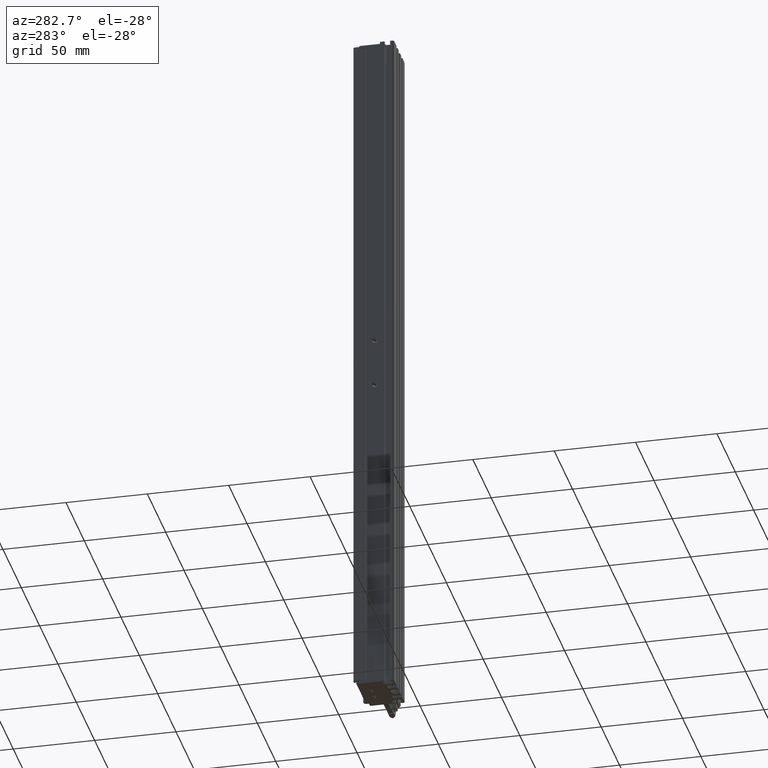
[diagram: clean part render]
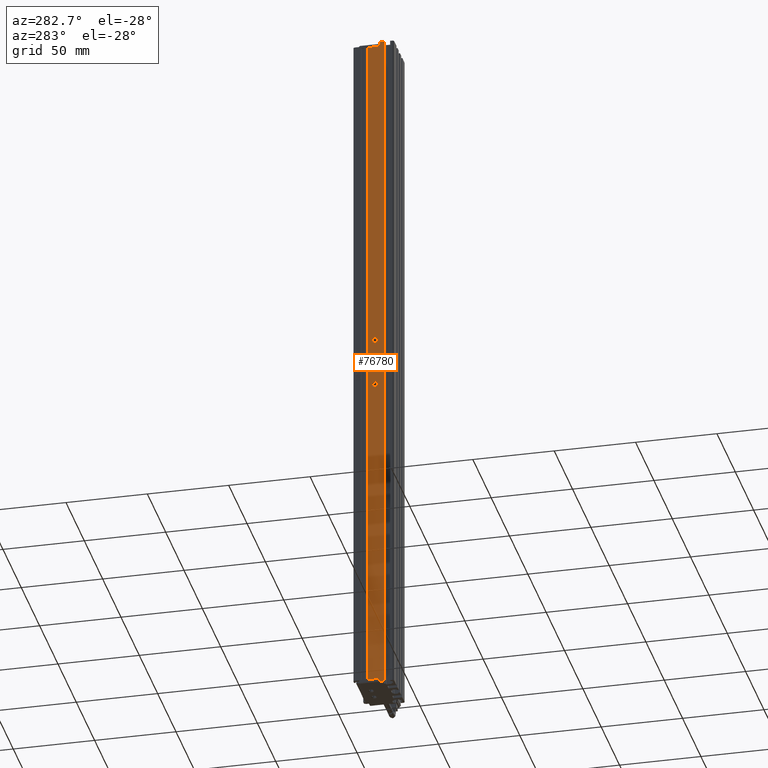
[diagram: same view with one face highlighted and labeled with its STEP entity id]
A machine part, auxiliary view. The second image highlights one B-rep face of the part: STEP entity #76780.
In plain terms, the highlighted planar face has unit normal (-1, 0, 0).
Its self-contained STEP definition (entity closure, byte-faithful):
#2262 = ORIENTED_EDGE ( 'NONE', *, *, #73562, .T. ) ;
#2331 = VERTEX_POINT ( 'NONE', #66686 ) ;
#3093 = FACE_BOUND ( 'NONE', #12512, .T. ) ;
#5262 = ORIENTED_EDGE ( 'NONE', *, *, #66899, .T. ) ;
#6059 = CIRCLE ( 'NONE', #45149, 1.800000000073409500 ) ;
#6368 = EDGE_CURVE ( 'NONE', #79115, #49622, #29121, .T. ) ;
#6447 = VERTEX_POINT ( 'NONE', #13531 ) ;
#6976 = EDGE_CURVE ( 'NONE', #6447, #34309, #69903, .T. ) ;
#7271 = CARTESIAN_POINT ( 'NONE',  ( 25.92537974683541800, 19.19594479660386500, 102.0000000000000000 ) ) ;
#7426 = LINE ( 'NONE', #7271, #40078 ) ;
#9789 = VERTEX_POINT ( 'NONE', #41407 ) ;
#10041 = CIRCLE ( 'NONE', #30339, 1.800000000073409500 ) ;
#10093 = AXIS2_PLACEMENT_3D ( 'NONE', #55164, #18333, #61311 ) ;
#11557 = ORIENTED_EDGE ( 'NONE', *, *, #45672, .T. ) ;
#12239 = CARTESIAN_POINT ( 'NONE',  ( 25.92537974684906700, 22.39594479660386700, -101.7999999999892700 ) ) ;
#12512 = EDGE_LOOP ( 'NONE', ( #39882, #60684 ) ) ;
#13531 = CARTESIAN_POINT ( 'NONE',  ( 25.92537974683541800, 19.19594479660386500, 99.99999999999998600 ) ) ;
#13819 = EDGE_CURVE ( 'NONE', #32011, #32689, #34585, .T. ) ;
#14059 = ORIENTED_EDGE ( 'NONE', *, *, #74944, .T. ) ;
#15916 = VERTEX_POINT ( 'NONE', #19707 ) ;
#17545 = CARTESIAN_POINT ( 'NONE',  ( 25.92537974683541800, 19.19594479660386500, -332.0000000000000000 ) ) ;
#18333 = DIRECTION ( 'NONE',  ( 1.000000000000000000, -0.0000000000000000000, -0.0000000000000000000 ) ) ;
#19707 = CARTESIAN_POINT ( 'NONE',  ( 25.92537974683541800, 19.19594479660386500, 102.0000000000000000 ) ) ;
#19772 = EDGE_CURVE ( 'NONE', #32689, #15916, #62241, .T. ) ;
#20091 = AXIS2_PLACEMENT_3D ( 'NONE', #68704, #31858, #74947 ) ;
#20851 = VECTOR ( 'NONE', #43501, 1000.000000000000000 ) ;
#21387 = LINE ( 'NONE', #32876, #52206 ) ;
#23832 = CARTESIAN_POINT ( 'NONE',  ( 25.92537974679222400, 22.39594479660386700, -130.0000000000000000 ) ) ;
#24799 = DIRECTION ( 'NONE',  ( 0.0000000000000000000, 0.0000000000000000000, 1.000000000000000000 ) ) ;
#24861 = CARTESIAN_POINT ( 'NONE',  ( 25.92537974683541800, 7.083797468354437600, -332.0000000000000000 ) ) ;
#25063 = DIRECTION ( 'NONE',  ( 1.000000000000000000, -0.0000000000000000000, -0.0000000000000000000 ) ) ;
#25315 = CARTESIAN_POINT ( 'NONE',  ( 25.92537974684906700, 22.39594479660386700, -100.0000000000000000 ) ) ;
#25769 = EDGE_CURVE ( 'NONE', #15916, #6447, #7426, .T. ) ;
#25890 = ORIENTED_EDGE ( 'NONE', *, *, #6976, .T. ) ;
#27441 = VERTEX_POINT ( 'NONE', #67426 ) ;
#27736 = CARTESIAN_POINT ( 'NONE',  ( 25.92537974683541800, 16.49594479660387200, 102.0000000000000000 ) ) ;
#28053 = LINE ( 'NONE', #41113, #58852 ) ;
#29121 = CIRCLE ( 'NONE', #46644, 1.799999999989268400 ) ;
#29495 = CARTESIAN_POINT ( 'NONE',  ( 25.92537974683541800, 7.083797468354437600, -330.0000000000000000 ) ) ;
#29603 = EDGE_CURVE ( 'NONE', #9789, #2331, #58062, .T. ) ;
#29984 = DIRECTION ( 'NONE',  ( 0.0000000000000000000, 0.0000000000000000000, 1.000000000000000000 ) ) ;
#30339 = AXIS2_PLACEMENT_3D ( 'NONE', #32488, #75591, #38685 ) ;
#30452 = ORIENTED_EDGE ( 'NONE', *, *, #13819, .T. ) ;
#31858 = DIRECTION ( 'NONE',  ( -1.000000000000000000, 0.0000000000000000000, 0.0000000000000000000 ) ) ;
#32011 = VERTEX_POINT ( 'NONE', #47969 ) ;
#32488 = CARTESIAN_POINT ( 'NONE',  ( 25.92537974679222400, 22.39594479660386700, -130.0000000000000000 ) ) ;
#32689 = VERTEX_POINT ( 'NONE', #27736 ) ;
#32716 = CARTESIAN_POINT ( 'NONE',  ( 25.92537974683541800, 16.49594479660387200, 102.0000000000000000 ) ) ;
#32876 = CARTESIAN_POINT ( 'NONE',  ( 25.92537974683542100, 19.19594479660386500, 102.0000000000000000 ) ) ;
#34309 = VERTEX_POINT ( 'NONE', #39862 ) ;
#34585 = LINE ( 'NONE', #32716, #67286 ) ;
#35027 = ORIENTED_EDGE ( 'NONE', *, *, #6368, .T. ) ;
#36731 = EDGE_CURVE ( 'NONE', #61576, #27441, #6059, .T. ) ;
#37358 = CARTESIAN_POINT ( 'NONE',  ( 25.92537974683542100, 35.69594479660387500, 99.99999999999998600 ) ) ;
#38554 = CARTESIAN_POINT ( 'NONE',  ( 25.92537974684906700, 22.39594479660386700, -98.20000000001073200 ) ) ;
#38685 = DIRECTION ( 'NONE',  ( 0.0000000000000000000, 0.0000000000000000000, 1.000000000000000000 ) ) ;
#39101 = DIRECTION ( 'NONE',  ( 0.0000000000000000000, -0.0000000000000000000, -1.000000000000000000 ) ) ;
#39862 = CARTESIAN_POINT ( 'NONE',  ( 25.92537974683541800, 26.69594479660386800, 99.99999999999998600 ) ) ;
#39882 = ORIENTED_EDGE ( 'NONE', *, *, #76243, .T. ) ;
#40078 = VECTOR ( 'NONE', #50191, 1000.000000000000000 ) ;
#41113 = CARTESIAN_POINT ( 'NONE',  ( 25.92537974683541800, 26.69594479660386800, 102.0000000000000000 ) ) ;
#41407 = CARTESIAN_POINT ( 'NONE',  ( 25.92537974683541800, 26.69594479660386800, -330.0000000000000000 ) ) ;
#41452 = ORIENTED_EDGE ( 'NONE', *, *, #29603, .T. ) ;
#43501 = DIRECTION ( 'NONE',  ( 0.0000000000000000000, 1.000000000000000000, 0.0000000000000000000 ) ) ;
#44917 = ORIENTED_EDGE ( 'NONE', *, *, #19772, .T. ) ;
#45149 = AXIS2_PLACEMENT_3D ( 'NONE', #23832, #66812, #29984 ) ;
#45672 = EDGE_CURVE ( 'NONE', #34309, #9789, #28053, .T. ) ;
#46592 = LINE ( 'NONE', #24861, #48506 ) ;
#46644 = AXIS2_PLACEMENT_3D ( 'NONE', #25315, #25063, #24799 ) ;
#47310 = DIRECTION ( 'NONE',  ( -0.0000000000000000000, -0.0000000000000000000, -1.000000000000000000 ) ) ;
#47969 = CARTESIAN_POINT ( 'NONE',  ( 25.92537974683541800, 16.49594479660387200, -332.0000000000000000 ) ) ;
#48506 = VECTOR ( 'NONE', #49312, 1000.000000000000000 ) ;
#49312 = DIRECTION ( 'NONE',  ( -0.0000000000000000000, -1.000000000000000000, 0.0000000000000000000 ) ) ;
#49622 = VERTEX_POINT ( 'NONE', #12239 ) ;
#49815 = CARTESIAN_POINT ( 'NONE',  ( 25.92537974683541800, 7.083797468354437600, 102.0000000000000000 ) ) ;
#50191 = DIRECTION ( 'NONE',  ( 0.0000000000000000000, -0.0000000000000000000, -1.000000000000000000 ) ) ;
#52116 = FACE_BOUND ( 'NONE', #55242, .T. ) ;
#52206 = VECTOR ( 'NONE', #39101, 1000.000000000000000 ) ;
#55164 = CARTESIAN_POINT ( 'NONE',  ( 25.92537974684906700, 22.39594479660386700, -100.0000000000000000 ) ) ;
#55242 = EDGE_LOOP ( 'NONE', ( #35027, #2262 ) ) ;
#55999 = DIRECTION ( 'NONE',  ( 0.0000000000000000000, 1.000000000000000000, -0.0000000000000000000 ) ) ;
#56122 = VECTOR ( 'NONE', #60133, 1000.000000000000000 ) ;
#58062 = LINE ( 'NONE', #29495, #56122 ) ;
#58647 = EDGE_LOOP ( 'NONE', ( #44917, #76283, #25890, #11557, #41452, #5262, #14059, #30452 ) ) ;
#58852 = VECTOR ( 'NONE', #47310, 1000.000000000000000 ) ;
#60133 = DIRECTION ( 'NONE',  ( -0.0000000000000000000, -1.000000000000000000, 0.0000000000000000000 ) ) ;
#60336 = VECTOR ( 'NONE', #55999, 1000.000000000000000 ) ;
#60684 = ORIENTED_EDGE ( 'NONE', *, *, #36731, .T. ) ;
#61311 = DIRECTION ( 'NONE',  ( 0.0000000000000000000, 0.0000000000000000000, 1.000000000000000000 ) ) ;
#61576 = VERTEX_POINT ( 'NONE', #69310 ) ;
#62241 = LINE ( 'NONE', #49815, #60336 ) ;
#65207 = CIRCLE ( 'NONE', #10093, 1.799999999989268400 ) ;
#66686 = CARTESIAN_POINT ( 'NONE',  ( 25.92537974683541800, 19.19594479660386500, -330.0000000000000000 ) ) ;
#66812 = DIRECTION ( 'NONE',  ( 1.000000000000000000, -0.0000000000000000000, -0.0000000000000000000 ) ) ;
#66899 = EDGE_CURVE ( 'NONE', #2331, #68815, #21387, .T. ) ;
#67286 = VECTOR ( 'NONE', #75806, 1000.000000000000000 ) ;
#67426 = CARTESIAN_POINT ( 'NONE',  ( 25.92537974679222400, 22.39594479660386700, -128.1999999999266000 ) ) ;
#68425 = FACE_OUTER_BOUND ( 'NONE', #58647, .T. ) ;
#68704 = CARTESIAN_POINT ( 'NONE',  ( 25.92537974683541800, 7.083797468354437600, 102.0000000000000000 ) ) ;
#68815 = VERTEX_POINT ( 'NONE', #17545 ) ;
#69310 = CARTESIAN_POINT ( 'NONE',  ( 25.92537974679222400, 22.39594479660386700, -131.8000000000734200 ) ) ;
#69903 = LINE ( 'NONE', #37358, #20851 ) ;
#73562 = EDGE_CURVE ( 'NONE', #49622, #79115, #65207, .T. ) ;
#74681 = PLANE ( 'NONE',  #20091 ) ;
#74944 = EDGE_CURVE ( 'NONE', #68815, #32011, #46592, .T. ) ;
#74947 = DIRECTION ( 'NONE',  ( 0.0000000000000000000, 0.0000000000000000000, 1.000000000000000000 ) ) ;
#75591 = DIRECTION ( 'NONE',  ( 1.000000000000000000, -0.0000000000000000000, -0.0000000000000000000 ) ) ;
#75806 = DIRECTION ( 'NONE',  ( 0.0000000000000000000, 0.0000000000000000000, 1.000000000000000000 ) ) ;
#76243 = EDGE_CURVE ( 'NONE', #27441, #61576, #10041, .T. ) ;
#76283 = ORIENTED_EDGE ( 'NONE', *, *, #25769, .T. ) ;
#76780 = ADVANCED_FACE ( 'NONE', ( #68425, #52116, #3093 ), #74681, .T. ) ;
#79115 = VERTEX_POINT ( 'NONE', #38554 ) ;